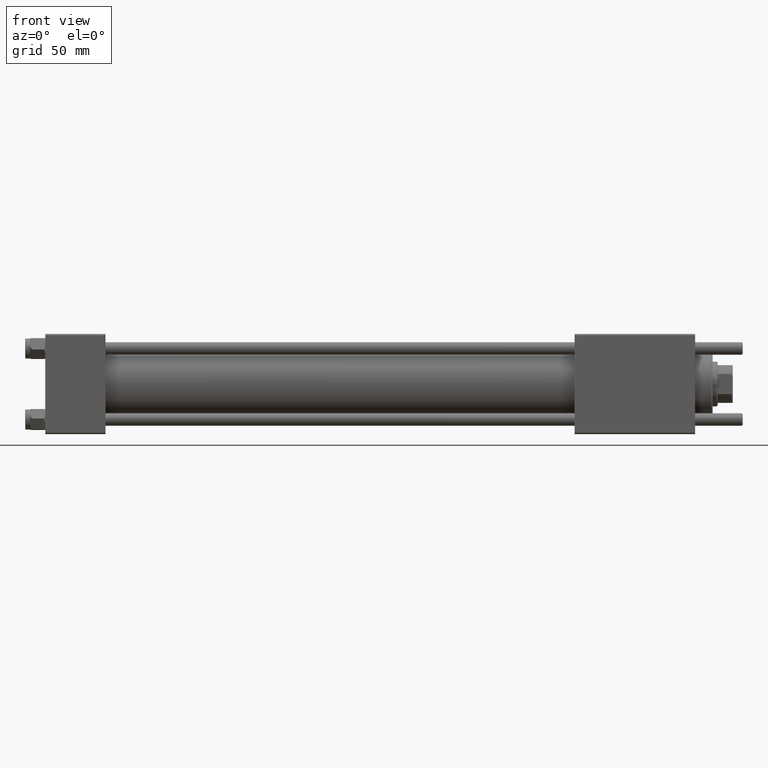
[diagram: clean part render]
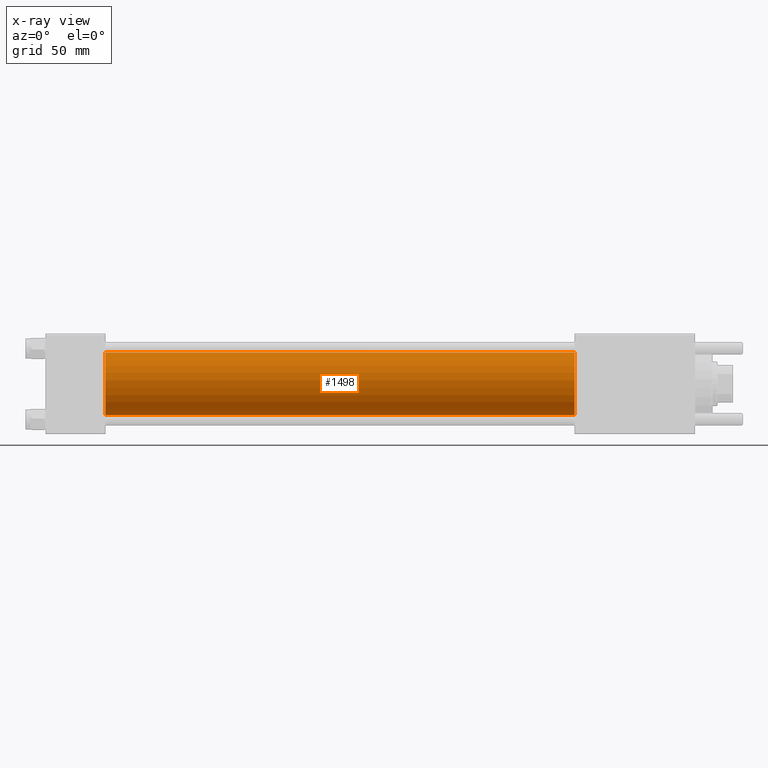
[diagram: x-ray — body ghosted, one internal face saturated and labeled with its STEP entity id]
A machine part, front view, then the same camera in x-ray: the body is ghosted and one INTERNAL B-rep face — a face not visible from any outside direction — is saturated and labeled: STEP entity #1498.
In plain terms, the highlighted cylindrical surface (edge-blend (fillet) strip) has radius 12.5 mm, axis along (-1, -0, -0).
Its self-contained STEP definition (entity closure, byte-faithful):
#1378 = LINE ( 'NONE', #15695, #3123 ) ;
#1498 = ADVANCED_FACE ( 'NONE', ( #38548 ), #25368, .F. ) ;
#2208 = CARTESIAN_POINT ( 'NONE',  ( 24.00000000000000000, -1.071276715031019515E-15, -12.49999999999999645 ) ) ;
#2962 = AXIS2_PLACEMENT_3D ( 'NONE', #29395, #20208, #47711 ) ;
#3123 = VECTOR ( 'NONE', #40662, 1000.000000000000000 ) ;
#3635 = EDGE_LOOP ( 'NONE', ( #30159, #33319, #11232, #13772 ) ) ;
#5353 = DIRECTION ( 'NONE',  ( 0.000000000000000000, 0.000000000000000000, -1.000000000000000000 ) ) ;
#6679 = EDGE_CURVE ( 'NONE', #32921, #28036, #1378, .T. ) ;
#7022 = EDGE_CURVE ( 'NONE', #35577, #28036, #12303, .T. ) ;
#7058 = DIRECTION ( 'NONE',  ( -1.000000000000000000, -0.000000000000000000, -0.000000000000000000 ) ) ;
#10981 = CARTESIAN_POINT ( 'NONE',  ( 211.0000000000000000, -2.602085213965210642E-15, 12.49999999999999645 ) ) ;
#11232 = ORIENTED_EDGE ( 'NONE', *, *, #7022, .F. ) ;
#11359 = CARTESIAN_POINT ( 'NONE',  ( 211.0000000000000000, -2.602085213965210642E-15, 12.49999999999999645 ) ) ;
#12303 = CIRCLE ( 'NONE', #37012, 12.49999999999999645 ) ;
#13772 = ORIENTED_EDGE ( 'NONE', *, *, #48889, .F. ) ;
#15695 = CARTESIAN_POINT ( 'NONE',  ( 211.0000000000000000, -1.071276715031019515E-15, -12.49999999999999645 ) ) ;
#19887 = CARTESIAN_POINT ( 'NONE',  ( 211.0000000000000000, -1.071276715031019515E-15, -12.49999999999999645 ) ) ;
#20042 = CIRCLE ( 'NONE', #30114, 12.49999999999999645 ) ;
#20208 = DIRECTION ( 'NONE',  ( -1.000000000000000000, -0.000000000000000000, -0.000000000000000000 ) ) ;
#20209 = CARTESIAN_POINT ( 'NONE',  ( 24.00000000000000000, -2.602085213965210642E-15, 0.000000000000000000 ) ) ;
#24552 = VERTEX_POINT ( 'NONE', #10981 ) ;
#25368 = CYLINDRICAL_SURFACE ( 'NONE', #2962, 12.49999999999999645 ) ;
#26002 = CARTESIAN_POINT ( 'NONE',  ( 211.0000000000000000, -2.602085213965210642E-15, 0.000000000000000000 ) ) ;
#28036 = VERTEX_POINT ( 'NONE', #2208 ) ;
#29395 = CARTESIAN_POINT ( 'NONE',  ( 211.0000000000000000, -2.602085213965210642E-15, 0.000000000000000000 ) ) ;
#30114 = AXIS2_PLACEMENT_3D ( 'NONE', #26002, #52638, #5353 ) ;
#30159 = ORIENTED_EDGE ( 'NONE', *, *, #55791, .T. ) ;
#32921 = VERTEX_POINT ( 'NONE', #19887 ) ;
#33319 = ORIENTED_EDGE ( 'NONE', *, *, #6679, .T. ) ;
#35577 = VERTEX_POINT ( 'NONE', #55241 ) ;
#37012 = AXIS2_PLACEMENT_3D ( 'NONE', #20209, #38824, #51441 ) ;
#38548 = FACE_OUTER_BOUND ( 'NONE', #3635, .T. ) ;
#38824 = DIRECTION ( 'NONE',  ( 1.000000000000000000, 0.000000000000000000, 0.000000000000000000 ) ) ;
#40662 = DIRECTION ( 'NONE',  ( -1.000000000000000000, -0.000000000000000000, -0.000000000000000000 ) ) ;
#47711 = DIRECTION ( 'NONE',  ( 0.000000000000000000, 0.000000000000000000, 1.000000000000000000 ) ) ;
#48889 = EDGE_CURVE ( 'NONE', #24552, #35577, #50616, .T. ) ;
#50616 = LINE ( 'NONE', #11359, #51990 ) ;
#51441 = DIRECTION ( 'NONE',  ( 0.000000000000000000, 0.000000000000000000, -1.000000000000000000 ) ) ;
#51990 = VECTOR ( 'NONE', #7058, 1000.000000000000000 ) ;
#52638 = DIRECTION ( 'NONE',  ( 1.000000000000000000, 0.000000000000000000, 0.000000000000000000 ) ) ;
#55241 = CARTESIAN_POINT ( 'NONE',  ( 24.00000000000000000, -2.602085213965210642E-15, 12.49999999999999645 ) ) ;
#55791 = EDGE_CURVE ( 'NONE', #24552, #32921, #20042, .T. ) ;